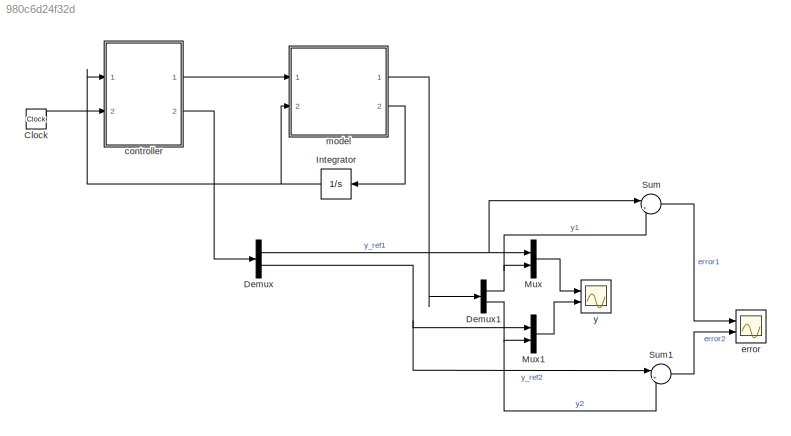
MODEL slx_980c6d24f32d
KIND model
CONFIG AbsTol = auto
CONFIG EnableMultiTasking = off
CONFIG FixedStep = auto
CONFIG MaxStep = auto
CONFIG MinStep = auto
CONFIG RelTol = 1e-3
CONFIG SampleTimeConstraint = Unconstrained
CONFIG Solver = VariableStepAuto
CONFIG SolverName = VariableStepAuto
CONFIG StartTime = 0.0
CONFIG StopTime = 25
BLOCK [Clock] Clock
BLOCK [Demux] Demux
  Outputs = 2
  Ports = [1, 2]
BLOCK [Demux] Demux1
  Outputs = 2
  Ports = [1, 2]
BLOCK [Integrator] Integrator
  InitialCondition = [0;0;0;0;0;]
  Ports = [1, 1]
BLOCK [Mux] Mux
  DisplayOption = bar
  Inputs = 2
  Ports = [2, 1]
BLOCK [Mux] Mux1
  DisplayOption = bar
  Inputs = 2
  Ports = [2, 1]
BLOCK [Sum] Sum
  Inputs = |+-
  Ports = [2, 1]
BLOCK [Sum] Sum1
  Inputs = |+-
  Ports = [2, 1]
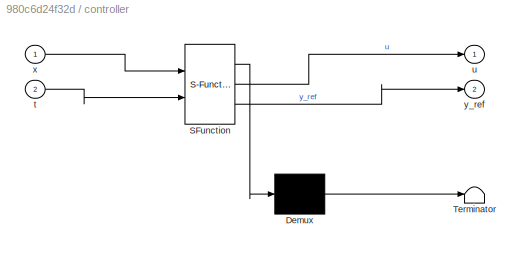
BLOCK [SubSystem] controller
  ErrorFcn = Stateflow.Translate.translate
  PermitHierarchicalResolution = ExplicitOnly
  Ports = [2, 2]
  SFBlockType = MATLAB Function
  TreatAsAtomicUnit = on
BLOCK [Demux] controller/ Demux 
  Outputs = 1
  Ports = [1, 1]
BLOCK [S-Function] controller/ SFunction 
  EnableBusSupport = on
  FunctionName = sf_sfun
  PortCounts = [2 3]
  Ports = [2, 3]
  SFcnIsStateOwnerBlock = off
  SFunctionDeploymentMode = off
  Tag = Stateflow S-Function Ex3_2_4_r2017b 2
BLOCK [Terminator] controller/ Terminator 
BLOCK [Inport] controller/t
  Port = 2
BLOCK [Outport] controller/u
BLOCK [Inport] controller/x
BLOCK [Outport] controller/y_ref
  Port = 2
BLOCK [Scope] error
  Floating = off
  NumInputPorts = 2
  Ports = [2]
  ScopeSpecificationString = Simulink.scopes.TimeScopeBlockCfg('CurrentConfiguration', extmgr.ConfigurationSet(extmgr.Configuration('Core','General UI',true),extmgr.Configuration('Core','Source UI',true),extmgr.Configuration('Sources','WiredSimulink',true),extmgr.Configuration('Visuals','Time Domain',true,'SerializedDisplays',{struct('MinYLimReal','-0.0000016','MaxYLimReal','0.0000073','YLabelReal','','MinYLimMag','0.0000000'...<+1954ch>
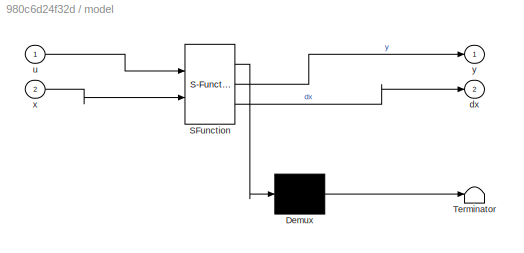
BLOCK [SubSystem] model
  ErrorFcn = Stateflow.Translate.translate
  PermitHierarchicalResolution = ExplicitOnly
  Ports = [2, 2]
  SFBlockType = MATLAB Function
  TreatAsAtomicUnit = on
BLOCK [Demux] model/ Demux 
  Outputs = 1
  Ports = [1, 1]
BLOCK [S-Function] model/ SFunction 
  EnableBusSupport = on
  FunctionName = sf_sfun
  PortCounts = [2 3]
  Ports = [2, 3]
  SFcnIsStateOwnerBlock = off
  SFunctionDeploymentMode = off
  Tag = Stateflow S-Function Ex3_2_4_r2017b 1
BLOCK [Terminator] model/ Terminator 
BLOCK [Outport] model/dx
  Port = 2
BLOCK [Inport] model/u
BLOCK [Inport] model/x
  Port = 2
BLOCK [Outport] model/y
BLOCK [Scope] y
  Floating = off
  NumInputPorts = 2
  Ports = [2]
  ScopeSpecificationString = Simulink.scopes.TimeScopeBlockCfg('CurrentConfiguration', extmgr.ConfigurationSet(extmgr.Configuration('Core','General UI',true),extmgr.Configuration('Core','Source UI',true),extmgr.Configuration('Sources','WiredSimulink',true,'DataLoggingVariableName','ScopeData1'),extmgr.Configuration('Visuals','Time Domain',true,'SerializedDisplays',{struct('MinYLimReal','-28.37499','MaxYLimReal','5.37485','YLa...<+2044ch>
LINE Clock:1 -> controller:2
NET Demux1:1 -> Mux:2, Sum:2
NET Demux1:2 -> Mux1:2, Sum1:2
NET Demux:1 -> Mux:1, Sum:1
NET Demux:2 -> Mux1:1, Sum1:1
NET Integrator:1 -> controller:1, model:2
LINE Mux1:1 -> y:2
LINE Mux:1 -> y:1
LINE Sum1:1 -> error:2
LINE Sum:1 -> error:1
LINE controller:1 -> model:1
LINE controller:2 -> Demux:1
LINE model:1 -> Demux1:1
LINE model:2 -> Integrator:1
note: NET lines group one-source signal fan-out (src -> all destinations, sorted); 1:1 wires keep LINE
CHART model states=1 transitions=1
  STATE_LABEL 'eML_blk_kernel()'
  STATE_LABEL 'SCRIPT:\nfunction [y,dx] = model(u,x)\n%#codegen\n\n%    This function was generated by the Symbolic Math Toolbox version 9.2.\n%    30-Nov-2022 21:05:52\n\nu1 = u(1,:);\nu2 = u(2,:);\nx1 = x(1,:);\nx2 = x(2,:);\nx3 = x(3,:);\nx4 = x(4,:);\nx5 = x(5,:);\ny = [x3;x2];\nif nargout > 1\n    dx = [-x1+x2.^2;u2+x4+x1.*x3;u1-x1+x3;u1+x5;-x5+u1.*x2+x3.^2];\nend\n'
CHART controller states=1 transitions=1
  STATE_LABEL 'eML_blk_kernel()'
  STATE_LABEL 'SCRIPT:\nfunction [u,y_ref] = controller(x,t)\n%#codegen\n\n%    This function was generated by the Symbolic Math Toolbox version 9.2.\n%    30-Nov-2022 21:05:51\n\nx1 = x(1,:);\nx2 = x(2,:);\nx3 = x(3,:);\nx4 = x(4,:);\nu = [t.*(3.0./2.5e+1)+x1-x3.*2.0+t.^2.*(6.0./1.25e+2)-t.^3./2.5e+2;t.*(9.0./5.0e+1)-x2-x4-x1.*x3+t.^2.*(9.0./1.25e+2)-t.^3.*(3.0./5.0e+2)];\nif nargout > 1\n    y_ref = [t.^2.*(3.0./5.0e+1)-t....<+57ch>'
